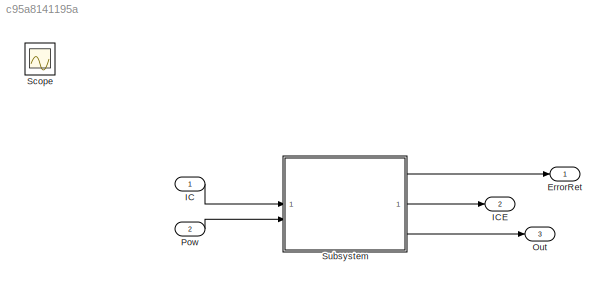
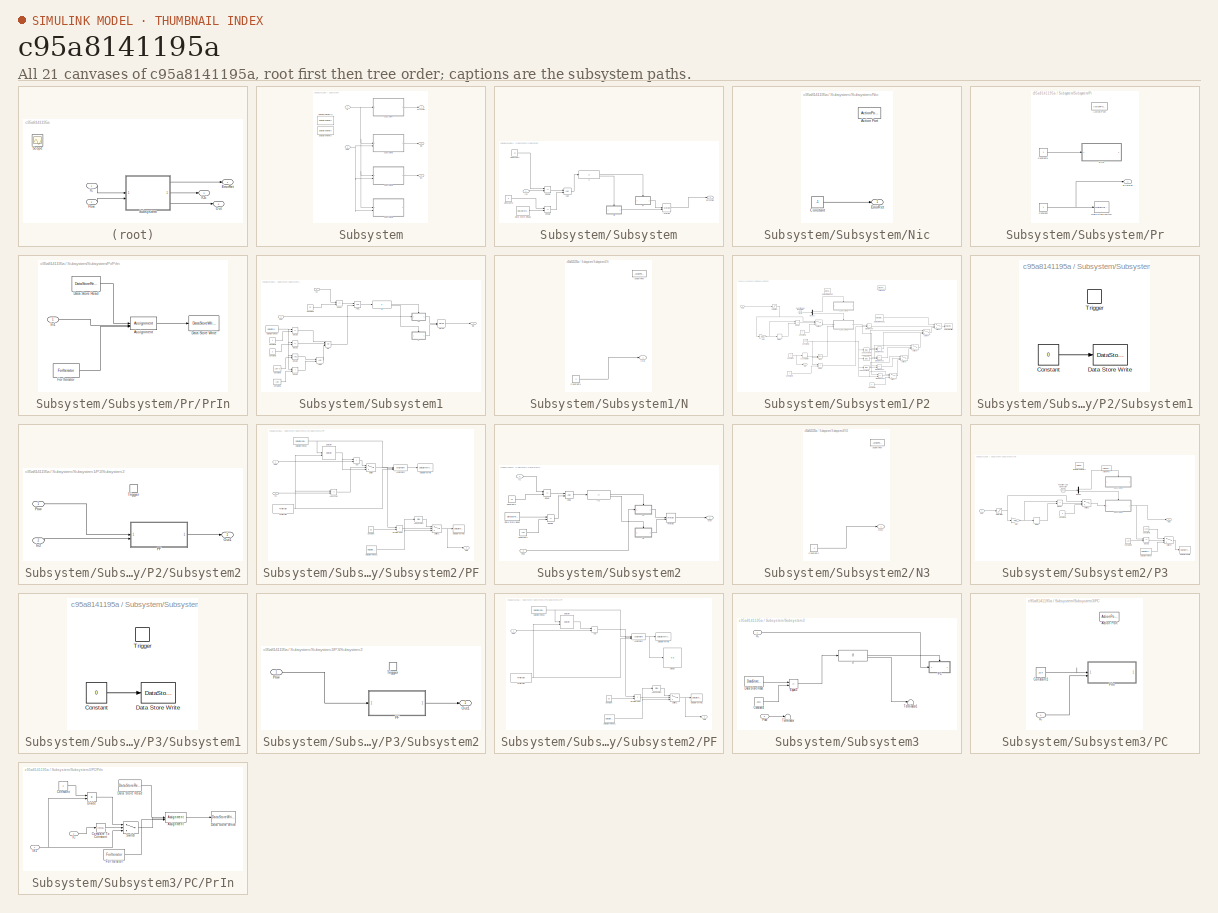
[diagram: thumbnail index - all 21 canvases of the model, root first then tree order]
MODEL slx_c95a8141195a
KIND model
CONFIG AbsTol = auto
CONFIG EnableMultiTasking = off
CONFIG FixedStep = 1
CONFIG MaxStep = auto
CONFIG MinStep = auto
CONFIG RelTol = 1e-3
CONFIG SampleTimeConstraint = Unconstrained
CONFIG SolverName = FixedStepAuto
CONFIG StartTime = 0.0
CONFIG StopTime = 10.0
BLOCK [Outport] ErrorRet
BLOCK [Inport] IC
  OutDataTypeStr = int32
BLOCK [Outport] ICE
  Port = 2
BLOCK [Outport] Out
  Port = 3
BLOCK [Inport] Pow
  OutDataTypeStr = single
  Port = 2
BLOCK [Scope] Scope
  Floating = off
  IOType = viewer
  NumInputPorts = 1
  ScopeSpecificationString = Simulink.scopes.TimeScopeBlockCfg('CurrentConfiguration', extmgr.ConfigurationSet(extmgr.Configuration('Core','General UI',true),extmgr.Configuration('Core','Source UI',true),extmgr.Configuration('Sources','WiredSimulink',true),extmgr.Configuration('Visuals','Time Domain',true),extmgr.Configuration('Tools','Plot Navigation',true),extmgr.Configuration('Tools','Measurements',true,'Version','2022b'))...<+49ch>
BLOCK [SubSystem] Subsystem
BLOCK [DataStoreMemory] Subsystem/Data Store Memory
  DataStoreName = TSS
  Dimensions = Len
  OutDataTypeStr = single
  ShowAdditionalParam = off
  WriteAfterWriteMsg = warning
BLOCK [DataStoreMemory] Subsystem/Data Store Memory1
  DataStoreName = CTRLS
  OutDataTypeStr = int32
  ShowAdditionalParam = off
  WriteAfterWriteMsg = warning
BLOCK [Outport] Subsystem/ErrorRet
BLOCK [Inport] Subsystem/IC
BLOCK [Outport] Subsystem/ICE
  Port = 2
BLOCK [Outport] Subsystem/Out
  Port = 3
BLOCK [Inport] Subsystem/Pow
  OutDataTypeStr = single
  Port = 2
BLOCK [SubSystem] Subsystem/Subsystem
BLOCK [Logic] Subsystem/Subsystem/AND
  AllPortsSameDT = off
  IconShape = distinctive
  OutDataTypeStr = boolean
BLOCK [Constant] Subsystem/Subsystem/Constant2
  OutDataTypeStr = int32
  Value = 11
BLOCK [Constant] Subsystem/Subsystem/Constant3
  OutDataTypeStr = int32
  Value = 0
BLOCK [DataStoreRead] Subsystem/Subsystem/Data Store Read1
  DataStoreName = CTRLS
  IndexOptions = Index vector (dialog)
  Indices = 1
  OutputSizes = 1
BLOCK [RelationalOperator] Subsystem/Subsystem/Equal1
  InputSameDT = off
  Operator = ==
  OutDataTypeStr = boolean
  RndMeth = Simplest
BLOCK [RelationalOperator] Subsystem/Subsystem/Equal2
  InputSameDT = off
  Operator = ==
  OutDataTypeStr = boolean
  RndMeth = Simplest
BLOCK [Outport] Subsystem/Subsystem/ErrorRet
BLOCK [If] Subsystem/Subsystem/If
  IfExpression = u1 ~= 0
BLOCK [Inport] Subsystem/Subsystem/In2
BLOCK [Merge] Subsystem/Subsystem/Merge
BLOCK [SubSystem] Subsystem/Subsystem/Nic
  TreatAsAtomicUnit = on
BLOCK [ActionPort] Subsystem/Subsystem/Nic/Action Port
  ActionPortLabel = else
BLOCK [Constant] Subsystem/Subsystem/Nic/Constant
  OutDataTypeStr = int32
  Value = -1
BLOCK [Outport] Subsystem/Subsystem/Nic/ErrorRet
BLOCK [SubSystem] Subsystem/Subsystem/Pr
  TreatAsAtomicUnit = on
BLOCK [ActionPort] Subsystem/Subsystem/Pr/Action Port
  ActionPortLabel = if(u1 ~= 0)
BLOCK [Constant] Subsystem/Subsystem/Pr/Constant
  OutDataTypeStr = int32
BLOCK [Constant] Subsystem/Subsystem/Pr/Constant1
  OutDataTypeStr = single
BLOCK [DataStoreWrite] Subsystem/Subsystem/Pr/Data Store Write1
  DataStoreName = CTRLS
  IndexOptions = Index vector (dialog)
  Indices = 1
  OutputSizes = 1
BLOCK [Outport] Subsystem/Subsystem/Pr/ErrorRet
BLOCK [SubSystem] Subsystem/Subsystem/Pr/PrIn
  TreatAsAtomicUnit = on
BLOCK [Assignment] Subsystem/Subsystem/Pr/PrIn/Assignment
  DiagnosticForDimensions = Warning
  IndexMode = Zero-based
  IndexOptions = Index vector (port)
  Indices = 1
  OutputSizes = 1
BLOCK [DataStoreRead] Subsystem/Subsystem/Pr/PrIn/Data Store Read
  DataStoreName = TSS
  IndexOptions = Index vector (dialog)
  Indices = 1
  OutputSizes = 1
BLOCK [DataStoreWrite] Subsystem/Subsystem/Pr/PrIn/Data Store Write
  DataStoreName = TSS
  IndexOptions = Index vector (dialog)
  Indices = 1
  OutputSizes = 1
BLOCK [ForIterator] Subsystem/Subsystem/Pr/PrIn/For Iterator
  IndexMode = Zero-based
  IterationLimit = Len
BLOCK [Inport] Subsystem/Subsystem/Pr/PrIn/In1
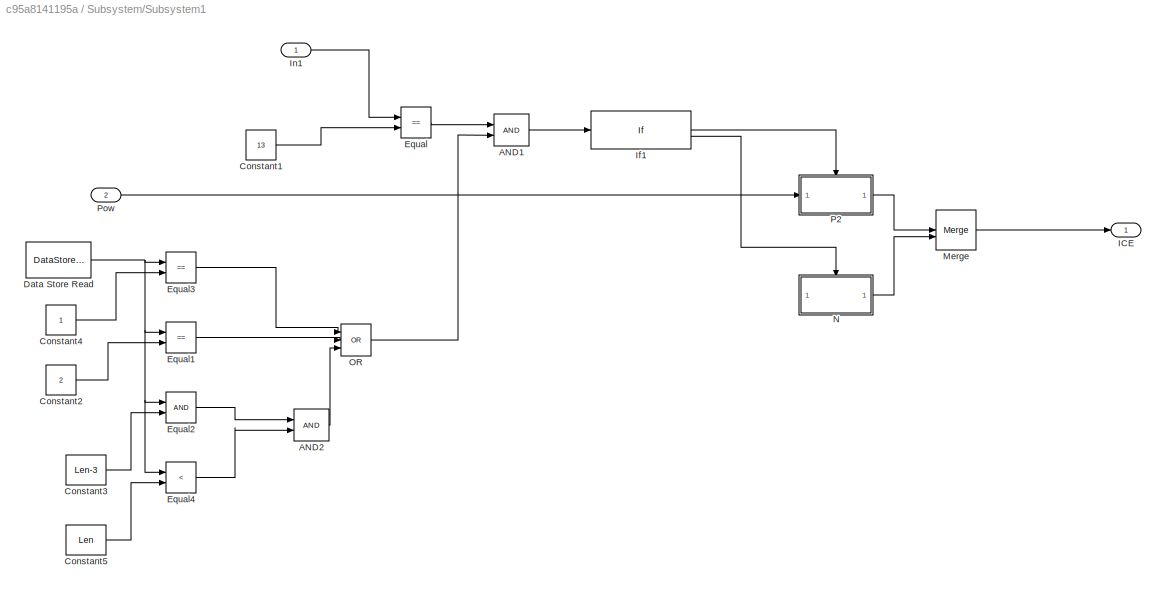
BLOCK [SubSystem] Subsystem/Subsystem1
BLOCK [Logic] Subsystem/Subsystem1/AND1
  AllPortsSameDT = off
  IconShape = distinctive
  OutDataTypeStr = boolean
BLOCK [Logic] Subsystem/Subsystem1/AND2
  AllPortsSameDT = off
  IconShape = distinctive
  OutDataTypeStr = boolean
BLOCK [Constant] Subsystem/Subsystem1/Constant1
  OutDataTypeStr = int32
  Value = 13
BLOCK [Constant] Subsystem/Subsystem1/Constant2
  OutDataTypeStr = int32
  Value = 2
BLOCK [Constant] Subsystem/Subsystem1/Constant3
  OutDataTypeStr = int32
  Value = Len-3
BLOCK [Constant] Subsystem/Subsystem1/Constant4
  OutDataTypeStr = int32
BLOCK [Constant] Subsystem/Subsystem1/Constant5
  OutDataTypeStr = int32
  Value = Len
BLOCK [DataStoreRead] Subsystem/Subsystem1/Data Store Read
  DataStoreName = CTRLS
  IndexOptions = Index vector (dialog)
  Indices = 1
  OutputSizes = 1
BLOCK [RelationalOperator] Subsystem/Subsystem1/Equal
  InputSameDT = off
  Operator = ==
  OutDataTypeStr = boolean
  RndMeth = Simplest
BLOCK [RelationalOperator] Subsystem/Subsystem1/Equal1
  InputSameDT = off
  Operator = ==
  OutDataTypeStr = boolean
  RndMeth = Simplest
BLOCK [RelationalOperator] Subsystem/Subsystem1/Equal2
  InputSameDT = off
  OutDataTypeStr = boolean
  RndMeth = Simplest
BLOCK [RelationalOperator] Subsystem/Subsystem1/Equal3
  InputSameDT = off
  Operator = ==
  OutDataTypeStr = boolean
  RndMeth = Simplest
BLOCK [RelationalOperator] Subsystem/Subsystem1/Equal4
  InputSameDT = off
  Operator = <
  OutDataTypeStr = boolean
  RndMeth = Simplest
BLOCK [Outport] Subsystem/Subsystem1/ICE
BLOCK [If] Subsystem/Subsystem1/If1
  IfExpression = u1 ~= 0
BLOCK [Inport] Subsystem/Subsystem1/In1
BLOCK [Merge] Subsystem/Subsystem1/Merge
BLOCK [SubSystem] Subsystem/Subsystem1/N
  TreatAsAtomicUnit = on
BLOCK [ActionPort] Subsystem/Subsystem1/N/Action Port
  ActionPortLabel = else
BLOCK [Constant] Subsystem/Subsystem1/N/Constant4
  OutDataTypeStr = int32
  Value = 2
BLOCK [Outport] Subsystem/Subsystem1/N/ICE
BLOCK [Logic] Subsystem/Subsystem1/OR
  AllPortsSameDT = off
  IconShape = distinctive
  Inputs = 3
  Operator = OR
  OutDataTypeStr = boolean
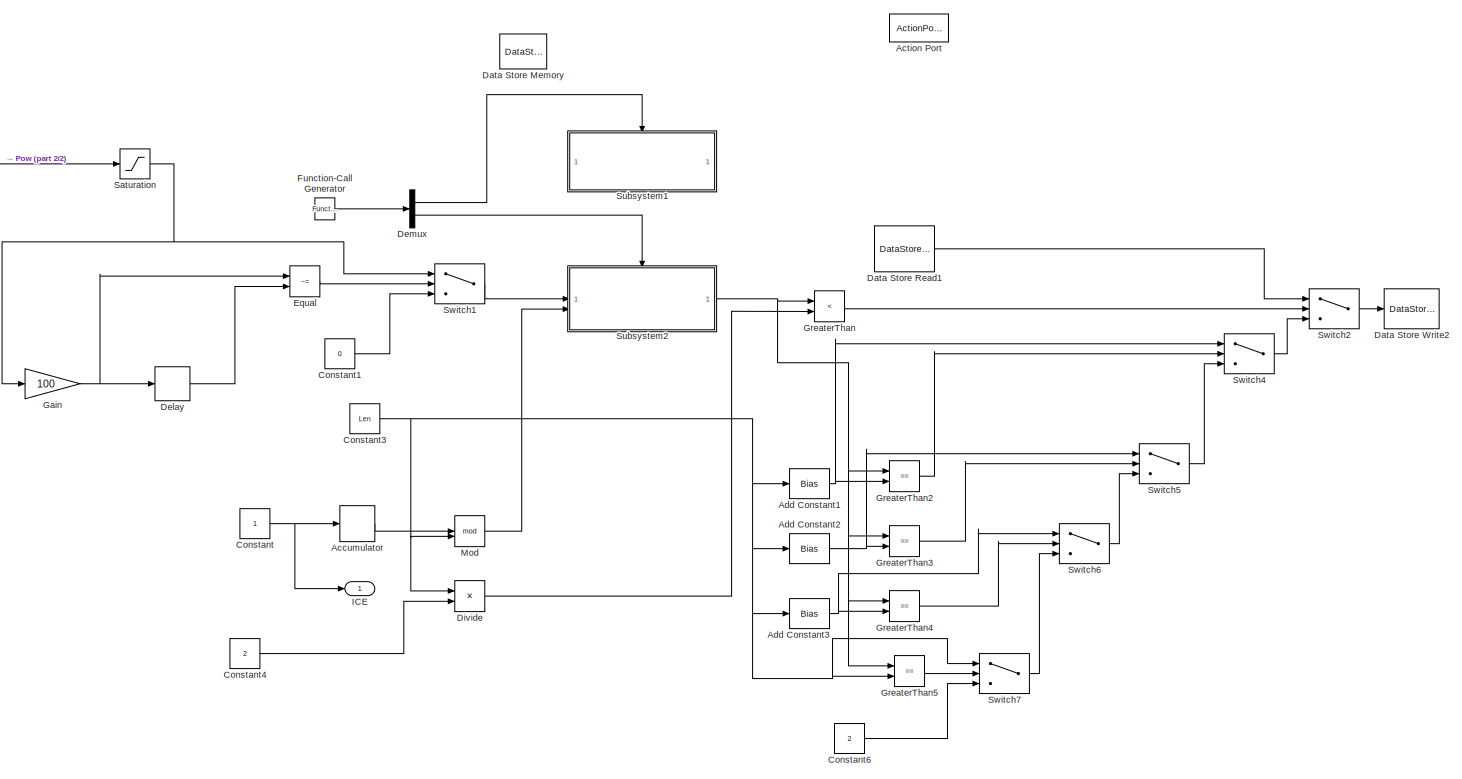
[diagram: Subsystem/Subsystem1/P2 - part 1/2, most of the canvas]
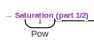
[diagram: Subsystem/Subsystem1/P2 - part 2/2, top left region]
BLOCK [SubSystem] Subsystem/Subsystem1/P2
  TreatAsAtomicUnit = on
BLOCK [DiscreteIntegrator] Subsystem/Subsystem1/P2/Accumulator
  ICPrevOutput = DiscIntNeverNeededParam
  ICPrevScaledInput = DiscIntNeverNeededParam
  InitialConditionSetting = Auto
  IntegratorMethod = Accumulation: Forward Euler
  SampleTime = -1
BLOCK [ActionPort] Subsystem/Subsystem1/P2/Action Port
  ActionPortLabel = if(u1 ~= 0)
BLOCK [Bias] Subsystem/Subsystem1/P2/Add Constant1
  Bias = -3
  SaturateOnIntegerOverflow = off
BLOCK [Bias] Subsystem/Subsystem1/P2/Add Constant2
  Bias = -2
  SaturateOnIntegerOverflow = off
BLOCK [Bias] Subsystem/Subsystem1/P2/Add Constant3
  Bias = -1
  SaturateOnIntegerOverflow = off
BLOCK [Constant] Subsystem/Subsystem1/P2/Constant
  OutDataTypeStr = int32
BLOCK [Constant] Subsystem/Subsystem1/P2/Constant1
  OutDataTypeStr = single
  Value = 0
BLOCK [Constant] Subsystem/Subsystem1/P2/Constant3
  OutDataTypeStr = int32
  Value = Len
BLOCK [Constant] Subsystem/Subsystem1/P2/Constant4
  OutDataTypeStr = int32
  Value = 2
BLOCK [Constant] Subsystem/Subsystem1/P2/Constant6
  OutDataTypeStr = int32
  Value = 2
BLOCK [DataStoreMemory] Subsystem/Subsystem1/P2/Data Store Memory
  DataStoreName = P1C
  OutDataTypeStr = int32
  ShowAdditionalParam = off
  WriteAfterWriteMsg = warning
BLOCK [DataStoreRead] Subsystem/Subsystem1/P2/Data Store Read1
  DataStoreName = CTRLS
  IndexOptions = Index vector (dialog)
  Indices = 1
  OutputSizes = 1
BLOCK [DataStoreWrite] Subsystem/Subsystem1/P2/Data Store Write2
  DataStoreName = CTRLS
  IndexOptions = Index vector (dialog)
  Indices = 1
  OutputSizes = 1
BLOCK [Delay] Subsystem/Subsystem1/P2/Delay
  DelayLength = 1
  InputPortMap = u0
BLOCK [Demux] Subsystem/Subsystem1/P2/Demux
  Outputs = 2
BLOCK [Product] Subsystem/Subsystem1/P2/Divide
  Inputs = */
BLOCK [RelationalOperator] Subsystem/Subsystem1/P2/Equal
  InputSameDT = off
  Operator = ~=
  OutDataTypeStr = boolean
  RndMeth = Simplest
BLOCK [Reference] Subsystem/Subsystem1/P2/Function-Call Generator  REF=simulink/Ports &
Subsystems/Function-Call
Generator
  SourceBlock = simulink/Ports &\nSubsystems/Function-Call\nGenerator
  SourceType = Function-Call Generator
BLOCK [Gain] Subsystem/Subsystem1/P2/Gain
  Gain = 100
  OutDataTypeStr = int32
BLOCK [RelationalOperator] Subsystem/Subsystem1/P2/GreaterThan
  InputSameDT = off
  Operator = <
  OutDataTypeStr = boolean
  RndMeth = Simplest
BLOCK [RelationalOperator] Subsystem/Subsystem1/P2/GreaterThan2
  InputSameDT = off
  Operator = ==
  OutDataTypeStr = boolean
  RndMeth = Simplest
BLOCK [RelationalOperator] Subsystem/Subsystem1/P2/GreaterThan3
  InputSameDT = off
  Operator = ==
  OutDataTypeStr = boolean
  RndMeth = Simplest
BLOCK [RelationalOperator] Subsystem/Subsystem1/P2/GreaterThan4
  InputSameDT = off
  Operator = ==
  OutDataTypeStr = boolean
  RndMeth = Simplest
BLOCK [RelationalOperator] Subsystem/Subsystem1/P2/GreaterThan5
  InputSameDT = off
  Operator = ==
  OutDataTypeStr = boolean
  RndMeth = Simplest
BLOCK [Outport] Subsystem/Subsystem1/P2/ICE
BLOCK [Math] Subsystem/Subsystem1/P2/Mod
  Operator = mod
BLOCK [Inport] Subsystem/Subsystem1/P2/Pow
BLOCK [Saturate] Subsystem/Subsystem1/P2/Saturation
  LowerLimit = 1
  UpperLimit = 4
BLOCK [SubSystem] Subsystem/Subsystem1/P2/Subsystem1
BLOCK [Constant] Subsystem/Subsystem1/P2/Subsystem1/Constant
  OutDataTypeStr = int32
  Value = 0
BLOCK [DataStoreWrite] Subsystem/Subsystem1/P2/Subsystem1/Data Store Write
  DataStoreName = P1C
  IndexOptions = Index vector (dialog)
  Indices = 1
  OutputSizes = 1
BLOCK [TriggerPort] Subsystem/Subsystem1/P2/Subsystem1/Trigger
  PortDimensions = 1
  StatesWhenEnabling = held
  TriggerType = function-call
  VariantControl = (inherit)
BLOCK [SubSystem] Subsystem/Subsystem1/P2/Subsystem2
BLOCK [Inport] Subsystem/Subsystem1/P2/Subsystem2/In2
  Port = 2
BLOCK [Outport] Subsystem/Subsystem1/P2/Subsystem2/Out1
BLOCK [SubSystem] Subsystem/Subsystem1/P2/Subsystem2/PF
  TreatAsAtomicUnit = on
BLOCK [Sum] Subsystem/Subsystem1/P2/Subsystem2/PF/Add
  IconShape = rectangular
BLOCK [Bias] Subsystem/Subsystem1/P2/Subsystem2/PF/Add Constant
  Bias = 1
  SaturateOnIntegerOverflow = off
BLOCK [Assignment] Subsystem/Subsystem1/P2/Subsystem2/PF/Assignment
  DiagnosticForDimensions = Warning
  IndexMode = Zero-based
  IndexOptions = Index vector (port)
  Indices = 1
  OutputSizes = 1
BLOCK [Constant] Subsystem/Subsystem1/P2/Subsystem2/PF/Constant
  OutDataTypeStr = single
  Value = 3.5
BLOCK [DataStoreRead] Subsystem/Subsystem1/P2/Subsystem2/PF/Data Store Read
  DataStoreName = TSS
  IndexOptions = Index vector (dialog)
  Indices = 1
  OutputSizes = 1
BLOCK [DataStoreRead] Subsystem/Subsystem1/P2/Subsystem2/PF/Data Store Read1
  DataStoreName = P1C
  IndexOptions = Index vector (dialog)
  Indices = 1
  OutputSizes = 1
BLOCK [DataStoreWrite] Subsystem/Subsystem1/P2/Subsystem2/PF/Data Store Write
  DataStoreName = TSS
  IndexOptions = Index vector (dialog)
  Indices = 1
  OutputSizes = 1
BLOCK [DataStoreWrite] Subsystem/Subsystem1/P2/Subsystem2/PF/Data Store Write1
  DataStoreName = P1C
  IndexOptions = Index vector (dialog)
  Indices = 1
  OutputSizes = 1
BLOCK [ForIterator] Subsystem/Subsystem1/P2/Subsystem2/PF/For Iterator
  IndexMode = Zero-based
  IterationLimit = Len
BLOCK [RelationalOperator] Subsystem/Subsystem1/P2/Subsystem2/PF/GreaterThan
  InputSameDT = off
  Operator = >
  OutDataTypeStr = boolean
  RndMeth = Simplest
BLOCK [Inport] Subsystem/Subsystem1/P2/Subsystem2/PF/In1
  Port = 2
BLOCK [RelationalOperator] Subsystem/Subsystem1/P2/Subsystem2/PF/Less Than
  InputSameDT = off
  Operator = ==
  OutDataTypeStr = boolean
  RndMeth = Simplest
BLOCK [Outport] Subsystem/Subsystem1/P2/Subsystem2/PF/Out1
BLOCK [Inport] Subsystem/Subsystem1/P2/Subsystem2/PF/Pow
BLOCK [Selector] Subsystem/Subsystem1/P2/Subsystem2/PF/Selector
  IndexMode = Zero-based
  IndexOptions = Index vector (port)
  Indices = [1 3]
  InputPortWidth = Len
  OutputSizes = 1
BLOCK [Switch] Subsystem/Subsystem1/P2/Subsystem2/PF/Switch
  Criteria = u2 > Threshold
  InputSameDT = off
  SaturateOnIntegerOverflow = off
BLOCK [Switch] Subsystem/Subsystem1/P2/Subsystem2/PF/Switch1
  Criteria = u2 > Threshold
  InputSameDT = off
  SaturateOnIntegerOverflow = off
BLOCK [Inport] Subsystem/Subsystem1/P2/Subsystem2/Pow
BLOCK [TriggerPort] Subsystem/Subsystem1/P2/Subsystem2/Trigger
  PortDimensions = 1
  StatesWhenEnabling = held
  TriggerType = function-call
  VariantControl = (inherit)
BLOCK [Switch] Subsystem/Subsystem1/P2/Switch1
  Criteria = u2 > Threshold
  InputSameDT = off
  SaturateOnIntegerOverflow = off
BLOCK [Switch] Subsystem/Subsystem1/P2/Switch2
  Criteria = u2 ~= 0
  InputSameDT = off
  SaturateOnIntegerOverflow = off
BLOCK [Switch] Subsystem/Subsystem1/P2/Switch4
  Criteria = u2 ~= 0
  InputSameDT = off
  SaturateOnIntegerOverflow = off
BLOCK [Switch] Subsystem/Subsystem1/P2/Switch5
  Criteria = u2 ~= 0
  InputSameDT = off
  SaturateOnIntegerOverflow = off
BLOCK [Switch] Subsystem/Subsystem1/P2/Switch6
  Criteria = u2 ~= 0
  InputSameDT = off
  SaturateOnIntegerOverflow = off
BLOCK [Switch] Subsystem/Subsystem1/P2/Switch7
  Criteria = u2 ~= 0
  InputSameDT = off
  SaturateOnIntegerOverflow = off
BLOCK [Inport] Subsystem/Subsystem1/Pow
  Port = 2
BLOCK [SubSystem] Subsystem/Subsystem2
BLOCK [Logic] Subsystem/Subsystem2/AND1
  AllPortsSameDT = off
  IconShape = distinctive
  OutDataTypeStr = boolean
BLOCK [Constant] Subsystem/Subsystem2/Constant1
  OutDataTypeStr = int32
  Value = 19
BLOCK [Constant] Subsystem/Subsystem2/Constant4
  OutDataTypeStr = int32
  Value = Len
BLOCK [DataStoreRead] Subsystem/Subsystem2/Data Store Read
  DataStoreName = CTRLS
  IndexOptions = Index vector (dialog)
  Indices = 1
  OutputSizes = 1
BLOCK [RelationalOperator] Subsystem/Subsystem2/Equal
  InputSameDT = off
  Operator = ==
  OutDataTypeStr = boolean
  RndMeth = Simplest
BLOCK [RelationalOperator] Subsystem/Subsystem2/Equal3
  InputSameDT = off
  Operator = ==
  OutDataTypeStr = boolean
  RndMeth = Simplest
BLOCK [Inport] Subsystem/Subsystem2/IC
BLOCK [If] Subsystem/Subsystem2/If1
  IfExpression = u1 ~= 0
BLOCK [Merge] Subsystem/Subsystem2/Merge
BLOCK [SubSystem] Subsystem/Subsystem2/N3
  TreatAsAtomicUnit = on
BLOCK [ActionPort] Subsystem/Subsystem2/N3/Action Port
  ActionPortLabel = else
BLOCK [Constant] Subsystem/Subsystem2/N3/Constant4
  OutDataTypeStr = int32
  Value = -2
BLOCK [Outport] Subsystem/Subsystem2/N3/Out1
BLOCK [Outport] Subsystem/Subsystem2/Out
BLOCK [SubSystem] Subsystem/Subsystem2/P3
  TreatAsAtomicUnit = on
BLOCK [ActionPort] Subsystem/Subsystem2/P3/Action Port
  ActionPortLabel = if(u1 ~= 0)
BLOCK [Constant] Subsystem/Subsystem2/P3/Constant1
  OutDataTypeStr = single
  Value = 0
BLOCK [Constant] Subsystem/Subsystem2/P3/Constant2
  OutDataTypeStr = int32
  Value = Len
BLOCK [Constant] Subsystem/Subsystem2/P3/Constant3
  OutDataTypeStr = int32
  Value = 1001
BLOCK [DataStoreMemory] Subsystem/Subsystem2/P3/Data Store Memory
  DataStoreName = P2C
  OutDataTypeStr = int32
  ShowAdditionalParam = off
  WriteAfterWriteMsg = warning
BLOCK [DataStoreRead] Subsystem/Subsystem2/P3/Data Store Read
  DataStoreName = CTRLS
  IndexOptions = Index vector (dialog)
  Indices = 1
  OutputSizes = 1
BLOCK [DataStoreWrite] Subsystem/Subsystem2/P3/Data Store Write
  DataStoreName = CTRLS
  IndexOptions = Index vector (dialog)
  Indices = 1
  OutputSizes = 1
BLOCK [Delay] Subsystem/Subsystem2/P3/Delay
  DelayLength = 1
  InputPortMap = u0
BLOCK [Demux] Subsystem/Subsystem2/P3/Demux
  Outputs = 2
BLOCK [RelationalOperator] Subsystem/Subsystem2/P3/Equal
  InputSameDT = off
  Operator = ~=
  OutDataTypeStr = boolean
  RndMeth = Simplest
BLOCK [RelationalOperator] Subsystem/Subsystem2/P3/Equal1
  InputSameDT = off
  Operator = ==
  OutDataTypeStr = boolean
  RndMeth = Simplest
BLOCK [Reference] Subsystem/Subsystem2/P3/Function-Call Generator  REF=simulink/Ports &
Subsystems/Function-Call
Generator
  SourceBlock = simulink/Ports &\nSubsystems/Function-Call\nGenerator
  SourceType = Function-Call Generator
BLOCK [Gain] Subsystem/Subsystem2/P3/Gain
  Gain = 100
  OutDataTypeStr = int32
BLOCK [Outport] Subsystem/Subsystem2/P3/Out1
BLOCK [Inport] Subsystem/Subsystem2/P3/Pow
BLOCK [Saturate] Subsystem/Subsystem2/P3/Saturation
  LowerLimit = 0.5
  UpperLimit = 1.2
BLOCK [SubSystem] Subsystem/Subsystem2/P3/Subsystem1
BLOCK [Constant] Subsystem/Subsystem2/P3/Subsystem1/Constant
  OutDataTypeStr = int32
  Value = 0
BLOCK [DataStoreWrite] Subsystem/Subsystem2/P3/Subsystem1/Data Store Write
  DataStoreName = P2C
  IndexOptions = Index vector (dialog)
  Indices = 1
  OutputSizes = 1
BLOCK [TriggerPort] Subsystem/Subsystem2/P3/Subsystem1/Trigger
  PortDimensions = 1
  StatesWhenEnabling = held
  TriggerType = function-call
  VariantControl = (inherit)
BLOCK [SubSystem] Subsystem/Subsystem2/P3/Subsystem2
BLOCK [Outport] Subsystem/Subsystem2/P3/Subsystem2/Out1
BLOCK [SubSystem] Subsystem/Subsystem2/P3/Subsystem2/PF
  TreatAsAtomicUnit = on
BLOCK [Sum] Subsystem/Subsystem2/P3/Subsystem2/PF/Add
  IconShape = rectangular
BLOCK [Bias] Subsystem/Subsystem2/P3/Subsystem2/PF/Add Constant
  Bias = 1
  SaturateOnIntegerOverflow = off
BLOCK [Assignment] Subsystem/Subsystem2/P3/Subsystem2/PF/Assignment
  DiagnosticForDimensions = Warning
  IndexMode = Zero-based
  IndexOptions = Index vector (port)
  Indices = 1
  OutputSizes = 1
BLOCK [Constant] Subsystem/Subsystem2/P3/Subsystem2/PF/Constant
  OutDataTypeStr = single
  Value = 9.9
BLOCK [DataStoreRead] Subsystem/Subsystem2/P3/Subsystem2/PF/Data Store Read
  DataStoreName = TSS
  IndexOptions = Index vector (dialog)
  Indices = 1
  OutputSizes = 1
BLOCK [DataStoreRead] Subsystem/Subsystem2/P3/Subsystem2/PF/Data Store Read1
  DataStoreName = P2C
  IndexOptions = Index vector (dialog)
  Indices = 1
  OutputSizes = 1
BLOCK [DataStoreWrite] Subsystem/Subsystem2/P3/Subsystem2/PF/Data Store Write
  DataStoreName = TSS
  IndexOptions = Index vector (dialog)
  Indices = 1
  OutputSizes = 1
BLOCK [DataStoreWrite] Subsystem/Subsystem2/P3/Subsystem2/PF/Data Store Write1
  DataStoreName = P2C
  IndexOptions = Index vector (dialog)
  Indices = 1
  OutputSizes = 1
BLOCK [Display] Subsystem/Subsystem2/P3/Subsystem2/PF/Display
  Decimation = 1
BLOCK [ForIterator] Subsystem/Subsystem2/P3/Subsystem2/PF/For Iterator
  IndexMode = Zero-based
  IterationLimit = Len
BLOCK [RelationalOperator] Subsystem/Subsystem2/P3/Subsystem2/PF/GreaterThan
  InputSameDT = off
  Operator = >
  OutDataTypeStr = boolean
  RndMeth = Simplest
BLOCK [Outport] Subsystem/Subsystem2/P3/Subsystem2/PF/Out1
BLOCK [Inport] Subsystem/Subsystem2/P3/Subsystem2/PF/Pow
BLOCK [Selector] Subsystem/Subsystem2/P3/Subsystem2/PF/Selector
  IndexMode = Zero-based
  IndexOptions = Index vector (port)
  Indices = [1 3]
  InputPortWidth = Len
  OutputSizes = 1
BLOCK [Switch] Subsystem/Subsystem2/P3/Subsystem2/PF/Switch1
  Criteria = u2 > Threshold
  InputSameDT = off
  SaturateOnIntegerOverflow = off
BLOCK [Inport] Subsystem/Subsystem2/P3/Subsystem2/Pow
BLOCK [TriggerPort] Subsystem/Subsystem2/P3/Subsystem2/Trigger
  PortDimensions = 1
  StatesWhenEnabling = held
  TriggerType = function-call
  VariantControl = (inherit)
BLOCK [Switch] Subsystem/Subsystem2/P3/Switch1
  Criteria = u2 ~= 0
  InputSameDT = off
  SaturateOnIntegerOverflow = off
BLOCK [Switch] Subsystem/Subsystem2/P3/Switch2
  Criteria = u2 ~= 0
  InputSameDT = off
  SaturateOnIntegerOverflow = off
BLOCK [Inport] Subsystem/Subsystem2/Pow
  Port = 2
BLOCK [SubSystem] Subsystem/Subsystem3
BLOCK [Constant] Subsystem/Subsystem3/Constant4
  OutDataTypeStr = int32
  Value = 1001
BLOCK [DataStoreRead] Subsystem/Subsystem3/Data Store Read
  DataStoreName = CTRLS
  IndexOptions = Index vector (dialog)
  Indices = 1
  OutputSizes = 1
BLOCK [RelationalOperator] Subsystem/Subsystem3/Equal3
  InputSameDT = off
  Operator = ==
  OutDataTypeStr = boolean
  RndMeth = Simplest
BLOCK [Inport] Subsystem/Subsystem3/IC
BLOCK [If] Subsystem/Subsystem3/If
  IfExpression = u1 ~= 0
BLOCK [SubSystem] Subsystem/Subsystem3/PC
  TreatAsAtomicUnit = on
BLOCK [ActionPort] Subsystem/Subsystem3/PC/Action Port
  ActionPortLabel = if(u1 ~= 0)
BLOCK [Constant] Subsystem/Subsystem3/PC/Constant1
  OutDataTypeStr = single
  Value = 10.0
BLOCK [Inport] Subsystem/Subsystem3/PC/IC
BLOCK [SubSystem] Subsystem/Subsystem3/PC/PrIn
  TreatAsAtomicUnit = on
BLOCK [Assignment] Subsystem/Subsystem3/PC/PrIn/Assignment
  DiagnosticForDimensions = Warning
  IndexMode = Zero-based
  IndexOptions = Index vector (port)
  Indices = 1
  OutputSizes = 1
BLOCK [Reference] Subsystem/Subsystem3/PC/PrIn/Compare To Constant  REF=simulink/Logic and Bit
Operations/Compare
To Constant
  SourceBlock = simulink/Logic and Bit\nOperations/Compare\nTo Constant
  SourceType = Compare To Constant
BLOCK [Constant] Subsystem/Subsystem3/PC/PrIn/Constant
  OutDataTypeStr = single
  Value = 2
BLOCK [DataStoreRead] Subsystem/Subsystem3/PC/PrIn/Data Store Read
  DataStoreName = TSS
  IndexOptions = Index vector (dialog)
  Indices = 1
  OutputSizes = 1
BLOCK [DataStoreWrite] Subsystem/Subsystem3/PC/PrIn/Data Store Write
  DataStoreName = TSS
  IndexOptions = Index vector (dialog)
  Indices = 1
  OutputSizes = 1
BLOCK [Product] Subsystem/Subsystem3/PC/PrIn/Divide
  Inputs = **
BLOCK [ForIterator] Subsystem/Subsystem3/PC/PrIn/For Iterator
  IndexMode = Zero-based
  IterationLimit = Len
BLOCK [Inport] Subsystem/Subsystem3/PC/PrIn/IC
  Port = 2
BLOCK [Inport] Subsystem/Subsystem3/PC/PrIn/In1
BLOCK [Switch] Subsystem/Subsystem3/PC/PrIn/Switch
  Criteria = u2 ~= 0
  InputSameDT = off
  SaturateOnIntegerOverflow = off
BLOCK [Inport] Subsystem/Subsystem3/Pow
  Port = 2
BLOCK [Terminator] Subsystem/Subsystem3/Terminator
BLOCK [Terminator] Subsystem/Subsystem3/Terminator1
LINE IC:1 -> Subsystem:1
LINE Pow:1 -> Subsystem:2
NET Subsystem/IC:1 -> Subsystem/Subsystem1:1, Subsystem/Subsystem2:1, Subsystem/Subsystem3:1, Subsystem/Subsystem:1
NET Subsystem/Pow:1 -> Subsystem/Subsystem1:2, Subsystem/Subsystem2:2, Subsystem/Subsystem3:2
LINE Subsystem/Subsystem/AND:1 -> Subsystem/Subsystem/If:1
LINE Subsystem/Subsystem/Constant2:1 -> Subsystem/Subsystem/Equal1:1
LINE Subsystem/Subsystem/Constant3:1 -> Subsystem/Subsystem/Equal2:1
LINE Subsystem/Subsystem/Data Store Read1:1 -> Subsystem/Subsystem/Equal2:2
LINE Subsystem/Subsystem/Equal1:1 -> Subsystem/Subsystem/AND:1
LINE Subsystem/Subsystem/Equal2:1 -> Subsystem/Subsystem/AND:2
LINE Subsystem/Subsystem/If:1 -> Subsystem/Subsystem/Pr:ifaction
LINE Subsystem/Subsystem/If:2 -> Subsystem/Subsystem/Nic:ifaction
LINE Subsystem/Subsystem/In2:1 -> Subsystem/Subsystem/Equal1:2
LINE Subsystem/Subsystem/Merge:1 -> Subsystem/Subsystem/ErrorRet:1
LINE Subsystem/Subsystem/Nic/Constant:1 -> Subsystem/Subsystem/Nic/ErrorRet:1
LINE Subsystem/Subsystem/Nic:1 -> Subsystem/Subsystem/Merge:2
LINE Subsystem/Subsystem/Pr/Constant1:1 -> Subsystem/Subsystem/Pr/PrIn:1
NET Subsystem/Subsystem/Pr/Constant:1 -> Subsystem/Subsystem/Pr/Data Store Write1:1, Subsystem/Subsystem/Pr/ErrorRet:1
LINE Subsystem/Subsystem/Pr/PrIn/Assignment:1 -> Subsystem/Subsystem/Pr/PrIn/Data Store Write:1
LINE Subsystem/Subsystem/Pr/PrIn/Data Store Read:1 -> Subsystem/Subsystem/Pr/PrIn/Assignment:1
LINE Subsystem/Subsystem/Pr/PrIn/For Iterator:1 -> Subsystem/Subsystem/Pr/PrIn/Assignment:3
LINE Subsystem/Subsystem/Pr/PrIn/In1:1 -> Subsystem/Subsystem/Pr/PrIn/Assignment:2
LINE Subsystem/Subsystem/Pr:1 -> Subsystem/Subsystem/Merge:1
LINE Subsystem/Subsystem1/AND1:1 -> Subsystem/Subsystem1/If1:1
LINE Subsystem/Subsystem1/AND2:1 -> Subsystem/Subsystem1/OR:3
LINE Subsystem/Subsystem1/Constant1:1 -> Subsystem/Subsystem1/Equal:2
LINE Subsystem/Subsystem1/Constant2:1 -> Subsystem/Subsystem1/Equal1:2
LINE Subsystem/Subsystem1/Constant3:1 -> Subsystem/Subsystem1/Equal2:2
LINE Subsystem/Subsystem1/Constant4:1 -> Subsystem/Subsystem1/Equal3:2
LINE Subsystem/Subsystem1/Constant5:1 -> Subsystem/Subsystem1/Equal4:2
NET Subsystem/Subsystem1/Data Store Read:1 -> Subsystem/Subsystem1/Equal1:1, Subsystem/Subsystem1/Equal2:1, Subsystem/Subsystem1/Equal3:1, Subsystem/Subsystem1/Equal4:1
LINE Subsystem/Subsystem1/Equal1:1 -> Subsystem/Subsystem1/OR:2
LINE Subsystem/Subsystem1/Equal2:1 -> Subsystem/Subsystem1/AND2:1
LINE Subsystem/Subsystem1/Equal3:1 -> Subsystem/Subsystem1/OR:1
LINE Subsystem/Subsystem1/Equal4:1 -> Subsystem/Subsystem1/AND2:2
LINE Subsystem/Subsystem1/Equal:1 -> Subsystem/Subsystem1/AND1:1
LINE Subsystem/Subsystem1/If1:1 -> Subsystem/Subsystem1/P2:ifaction
LINE Subsystem/Subsystem1/If1:2 -> Subsystem/Subsystem1/N:ifaction
LINE Subsystem/Subsystem1/In1:1 -> Subsystem/Subsystem1/Equal:1
LINE Subsystem/Subsystem1/Merge:1 -> Subsystem/Subsystem1/ICE:1
LINE Subsystem/Subsystem1/N/Constant4:1 -> Subsystem/Subsystem1/N/ICE:1
LINE Subsystem/Subsystem1/N:1 -> Subsystem/Subsystem1/Merge:2
LINE Subsystem/Subsystem1/OR:1 -> Subsystem/Subsystem1/AND1:2
LINE Subsystem/Subsystem1/P2/Accumulator:1 -> Subsystem/Subsystem1/P2/Mod:1
NET Subsystem/Subsystem1/P2/Add Constant1:1 -> Subsystem/Subsystem1/P2/GreaterThan2:2, Subsystem/Subsystem1/P2/Switch4:1
NET Subsystem/Subsystem1/P2/Add Constant2:1 -> Subsystem/Subsystem1/P2/GreaterThan3:2, Subsystem/Subsystem1/P2/Switch5:1
NET Subsystem/Subsystem1/P2/Add Constant3:1 -> Subsystem/Subsystem1/P2/GreaterThan4:2, Subsystem/Subsystem1/P2/Switch6:1
LINE Subsystem/Subsystem1/P2/Constant1:1 -> Subsystem/Subsystem1/P2/Switch1:3
NET Subsystem/Subsystem1/P2/Constant3:1 -> Subsystem/Subsystem1/P2/Add Constant1:1, Subsystem/Subsystem1/P2/Add Constant2:1, Subsystem/Subsystem1/P2/Add Constant3:1, Subsystem/Subsystem1/P2/Divide:1, Subsystem/Subsystem1/P2/GreaterThan5:2, Subsystem/Subsystem1/P2/Mod:2, Subsystem/Subsystem1/P2/Switch7:1
LINE Subsystem/Subsystem1/P2/Constant4:1 -> Subsystem/Subsystem1/P2/Divide:2
LINE Subsystem/Subsystem1/P2/Constant6:1 -> Subsystem/Subsystem1/P2/Switch7:3
NET Subsystem/Subsystem1/P2/Constant:1 -> Subsystem/Subsystem1/P2/Accumulator:1, Subsystem/Subsystem1/P2/ICE:1
LINE Subsystem/Subsystem1/P2/Data Store Read1:1 -> Subsystem/Subsystem1/P2/Switch2:1
LINE Subsystem/Subsystem1/P2/Delay:1 -> Subsystem/Subsystem1/P2/Equal:2
LINE Subsystem/Subsystem1/P2/Demux:1 -> Subsystem/Subsystem1/P2/Subsystem1:trigger
LINE Subsystem/Subsystem1/P2/Demux:2 -> Subsystem/Subsystem1/P2/Subsystem2:trigger
LINE Subsystem/Subsystem1/P2/Divide:1 -> Subsystem/Subsystem1/P2/GreaterThan:2
LINE Subsystem/Subsystem1/P2/Equal:1 -> Subsystem/Subsystem1/P2/Switch1:2
LINE Subsystem/Subsystem1/P2/Function-Call Generator:1 -> Subsystem/Subsystem1/P2/Demux:1
NET Subsystem/Subsystem1/P2/Gain:1 -> Subsystem/Subsystem1/P2/Delay:1, Subsystem/Subsystem1/P2/Equal:1
LINE Subsystem/Subsystem1/P2/GreaterThan2:1 -> Subsystem/Subsystem1/P2/Switch4:2
LINE Subsystem/Subsystem1/P2/GreaterThan3:1 -> Subsystem/Subsystem1/P2/Switch5:2
LINE Subsystem/Subsystem1/P2/GreaterThan4:1 -> Subsystem/Subsystem1/P2/Switch6:2
LINE Subsystem/Subsystem1/P2/GreaterThan5:1 -> Subsystem/Subsystem1/P2/Switch7:2
LINE Subsystem/Subsystem1/P2/GreaterThan:1 -> Subsystem/Subsystem1/P2/Switch2:2
LINE Subsystem/Subsystem1/P2/Mod:1 -> Subsystem/Subsystem1/P2/Subsystem2:2
LINE Subsystem/Subsystem1/P2/Pow:1 -> Subsystem/Subsystem1/P2/Saturation:1
NET Subsystem/Subsystem1/P2/Saturation:1 -> Subsystem/Subsystem1/P2/Gain:1, Subsystem/Subsystem1/P2/Switch1:1
LINE Subsystem/Subsystem1/P2/Subsystem1/Constant:1 -> Subsystem/Subsystem1/P2/Subsystem1/Data Store Write:1
LINE Subsystem/Subsystem1/P2/Subsystem2/In2:1 -> Subsystem/Subsystem1/P2/Subsystem2/PF:2
LINE Subsystem/Subsystem1/P2/Subsystem2/PF/Add Constant:1 -> Subsystem/Subsystem1/P2/Subsystem2/PF/Switch1:1
LINE Subsystem/Subsystem1/P2/Subsystem2/PF/Add:1 -> Subsystem/Subsystem1/P2/Subsystem2/PF/Switch:1
LINE Subsystem/Subsystem1/P2/Subsystem2/PF/Assignment:1 -> Subsystem/Subsystem1/P2/Subsystem2/PF/Data Store Write:1
LINE Subsystem/Subsystem1/P2/Subsystem2/PF/Constant:1 -> Subsystem/Subsystem1/P2/Subsystem2/PF/GreaterThan:2
NET Subsystem/Subsystem1/P2/Subsystem2/PF/Data Store Read1:1 -> Subsystem/Subsystem1/P2/Subsystem2/PF/Add Constant:1, Subsystem/Subsystem1/P2/Subsystem2/PF/Switch1:3
NET Subsystem/Subsystem1/P2/Subsystem2/PF/Data Store Read:1 -> Subsystem/Subsystem1/P2/Subsystem2/PF/Assignment:1, Subsystem/Subsystem1/P2/Subsystem2/PF/Selector:1
NET Subsystem/Subsystem1/P2/Subsystem2/PF/For Iterator:1 -> Subsystem/Subsystem1/P2/Subsystem2/PF/Assignment:3, Subsystem/Subsystem1/P2/Subsystem2/PF/Less Than:1, Subsystem/Subsystem1/P2/Subsystem2/PF/Selector:2
LINE Subsystem/Subsystem1/P2/Subsystem2/PF/GreaterThan:1 -> Subsystem/Subsystem1/P2/Subsystem2/PF/Switch1:2
LINE Subsystem/Subsystem1/P2/Subsystem2/PF/In1:1 -> Subsystem/Subsystem1/P2/Subsystem2/PF/Less Than:2
LINE Subsystem/Subsystem1/P2/Subsystem2/PF/Less Than:1 -> Subsystem/Subsystem1/P2/Subsystem2/PF/Switch:2
LINE Subsystem/Subsystem1/P2/Subsystem2/PF/Pow:1 -> Subsystem/Subsystem1/P2/Subsystem2/PF/Add:2
NET Subsystem/Subsystem1/P2/Subsystem2/PF/Selector:1 -> Subsystem/Subsystem1/P2/Subsystem2/PF/Add:1, Subsystem/Subsystem1/P2/Subsystem2/PF/Switch:3
NET Subsystem/Subsystem1/P2/Subsystem2/PF/Switch1:1 -> Subsystem/Subsystem1/P2/Subsystem2/PF/Data Store Write1:1, Subsystem/Subsystem1/P2/Subsystem2/PF/Out1:1
NET Subsystem/Subsystem1/P2/Subsystem2/PF/Switch:1 -> Subsystem/Subsystem1/P2/Subsystem2/PF/Assignment:2, Subsystem/Subsystem1/P2/Subsystem2/PF/GreaterThan:1
LINE Subsystem/Subsystem1/P2/Subsystem2/PF:1 -> Subsystem/Subsystem1/P2/Subsystem2/Out1:1
LINE Subsystem/Subsystem1/P2/Subsystem2/Pow:1 -> Subsystem/Subsystem1/P2/Subsystem2/PF:1
NET Subsystem/Subsystem1/P2/Subsystem2:1 -> Subsystem/Subsystem1/P2/GreaterThan2:1, Subsystem/Subsystem1/P2/GreaterThan3:1, Subsystem/Subsystem1/P2/GreaterThan4:1, Subsystem/Subsystem1/P2/GreaterThan5:1, Subsystem/Subsystem1/P2/GreaterThan:1
LINE Subsystem/Subsystem1/P2/Switch1:1 -> Subsystem/Subsystem1/P2/Subsystem2:1
LINE Subsystem/Subsystem1/P2/Switch2:1 -> Subsystem/Subsystem1/P2/Data Store Write2:1
LINE Subsystem/Subsystem1/P2/Switch4:1 -> Subsystem/Subsystem1/P2/Switch2:3
LINE Subsystem/Subsystem1/P2/Switch5:1 -> Subsystem/Subsystem1/P2/Switch4:3
LINE Subsystem/Subsystem1/P2/Switch6:1 -> Subsystem/Subsystem1/P2/Switch5:3
LINE Subsystem/Subsystem1/P2/Switch7:1 -> Subsystem/Subsystem1/P2/Switch6:3
LINE Subsystem/Subsystem1/P2:1 -> Subsystem/Subsystem1/Merge:1
LINE Subsystem/Subsystem1/Pow:1 -> Subsystem/Subsystem1/P2:1
LINE Subsystem/Subsystem1:1 -> Subsystem/ICE:1
LINE Subsystem/Subsystem2/AND1:1 -> Subsystem/Subsystem2/If1:1
LINE Subsystem/Subsystem2/Constant1:1 -> Subsystem/Subsystem2/Equal:2
LINE Subsystem/Subsystem2/Constant4:1 -> Subsystem/Subsystem2/Equal3:2
LINE Subsystem/Subsystem2/Data Store Read:1 -> Subsystem/Subsystem2/Equal3:1
LINE Subsystem/Subsystem2/Equal3:1 -> Subsystem/Subsystem2/AND1:2
LINE Subsystem/Subsystem2/Equal:1 -> Subsystem/Subsystem2/AND1:1
LINE Subsystem/Subsystem2/IC:1 -> Subsystem/Subsystem2/Equal:1
LINE Subsystem/Subsystem2/If1:1 -> Subsystem/Subsystem2/P3:ifaction
LINE Subsystem/Subsystem2/If1:2 -> Subsystem/Subsystem2/N3:ifaction
LINE Subsystem/Subsystem2/Merge:1 -> Subsystem/Subsystem2/Out:1
LINE Subsystem/Subsystem2/N3/Constant4:1 -> Subsystem/Subsystem2/N3/Out1:1
LINE Subsystem/Subsystem2/N3:1 -> Subsystem/Subsystem2/Merge:2
LINE Subsystem/Subsystem2/P3/Constant1:1 -> Subsystem/Subsystem2/P3/Switch1:3
LINE Subsystem/Subsystem2/P3/Constant2:1 -> Subsystem/Subsystem2/P3/Equal1:2
LINE Subsystem/Subsystem2/P3/Constant3:1 -> Subsystem/Subsystem2/P3/Switch2:1
LINE Subsystem/Subsystem2/P3/Data Store Read:1 -> Subsystem/Subsystem2/P3/Switch2:3
LINE Subsystem/Subsystem2/P3/Delay:1 -> Subsystem/Subsystem2/P3/Equal:2
LINE Subsystem/Subsystem2/P3/Demux:1 -> Subsystem/Subsystem2/P3/Subsystem1:trigger
LINE Subsystem/Subsystem2/P3/Demux:2 -> Subsystem/Subsystem2/P3/Subsystem2:trigger
LINE Subsystem/Subsystem2/P3/Equal1:1 -> Subsystem/Subsystem2/P3/Switch2:2
LINE Subsystem/Subsystem2/P3/Equal:1 -> Subsystem/Subsystem2/P3/Switch1:2
LINE Subsystem/Subsystem2/P3/Function-Call Generator:1 -> Subsystem/Subsystem2/P3/Demux:1
NET Subsystem/Subsystem2/P3/Gain:1 -> Subsystem/Subsystem2/P3/Delay:1, Subsystem/Subsystem2/P3/Equal:1
LINE Subsystem/Subsystem2/P3/Pow:1 -> Subsystem/Subsystem2/P3/Saturation:1
NET Subsystem/Subsystem2/P3/Saturation:1 -> Subsystem/Subsystem2/P3/Gain:1, Subsystem/Subsystem2/P3/Switch1:1
LINE Subsystem/Subsystem2/P3/Subsystem1/Constant:1 -> Subsystem/Subsystem2/P3/Subsystem1/Data Store Write:1
LINE Subsystem/Subsystem2/P3/Subsystem2/PF/Add Constant:1 -> Subsystem/Subsystem2/P3/Subsystem2/PF/Switch1:1
NET Subsystem/Subsystem2/P3/Subsystem2/PF/Add:1 -> Subsystem/Subsystem2/P3/Subsystem2/PF/Assignment:2, Subsystem/Subsystem2/P3/Subsystem2/PF/GreaterThan:1
NET Subsystem/Subsystem2/P3/Subsystem2/PF/Assignment:1 -> Subsystem/Subsystem2/P3/Subsystem2/PF/Data Store Write:1, Subsystem/Subsystem2/P3/Subsystem2/PF/Display:1
LINE Subsystem/Subsystem2/P3/Subsystem2/PF/Constant:1 -> Subsystem/Subsystem2/P3/Subsystem2/PF/GreaterThan:2
NET Subsystem/Subsystem2/P3/Subsystem2/PF/Data Store Read1:1 -> Subsystem/Subsystem2/P3/Subsystem2/PF/Add Constant:1, Subsystem/Subsystem2/P3/Subsystem2/PF/Switch1:3
NET Subsystem/Subsystem2/P3/Subsystem2/PF/Data Store Read:1 -> Subsystem/Subsystem2/P3/Subsystem2/PF/Assignment:1, Subsystem/Subsystem2/P3/Subsystem2/PF/Selector:1
NET Subsystem/Subsystem2/P3/Subsystem2/PF/For Iterator:1 -> Subsystem/Subsystem2/P3/Subsystem2/PF/Assignment:3, Subsystem/Subsystem2/P3/Subsystem2/PF/Selector:2
LINE Subsystem/Subsystem2/P3/Subsystem2/PF/GreaterThan:1 -> Subsystem/Subsystem2/P3/Subsystem2/PF/Switch1:2
LINE Subsystem/Subsystem2/P3/Subsystem2/PF/Pow:1 -> Subsystem/Subsystem2/P3/Subsystem2/PF/Add:2
LINE Subsystem/Subsystem2/P3/Subsystem2/PF/Selector:1 -> Subsystem/Subsystem2/P3/Subsystem2/PF/Add:1
NET Subsystem/Subsystem2/P3/Subsystem2/PF/Switch1:1 -> Subsystem/Subsystem2/P3/Subsystem2/PF/Data Store Write1:1, Subsystem/Subsystem2/P3/Subsystem2/PF/Out1:1
LINE Subsystem/Subsystem2/P3/Subsystem2/PF:1 -> Subsystem/Subsystem2/P3/Subsystem2/Out1:1
LINE Subsystem/Subsystem2/P3/Subsystem2/Pow:1 -> Subsystem/Subsystem2/P3/Subsystem2/PF:1
NET Subsystem/Subsystem2/P3/Subsystem2:1 -> Subsystem/Subsystem2/P3/Equal1:1, Subsystem/Subsystem2/P3/Out1:1
LINE Subsystem/Subsystem2/P3/Switch1:1 -> Subsystem/Subsystem2/P3/Subsystem2:1
LINE Subsystem/Subsystem2/P3/Switch2:1 -> Subsystem/Subsystem2/P3/Data Store Write:1
LINE Subsystem/Subsystem2/P3:1 -> Subsystem/Subsystem2/Merge:1
LINE Subsystem/Subsystem2/Pow:1 -> Subsystem/Subsystem2/P3:1
LINE Subsystem/Subsystem2:1 -> Subsystem/Out:1
LINE Subsystem/Subsystem3/Constant4:1 -> Subsystem/Subsystem3/Equal3:2
LINE Subsystem/Subsystem3/Data Store Read:1 -> Subsystem/Subsystem3/Equal3:1
LINE Subsystem/Subsystem3/Equal3:1 -> Subsystem/Subsystem3/If:1
LINE Subsystem/Subsystem3/IC:1 -> Subsystem/Subsystem3/PC:1
LINE Subsystem/Subsystem3/If:1 -> Subsystem/Subsystem3/PC:ifaction
LINE Subsystem/Subsystem3/If:2 -> Subsystem/Subsystem3/Terminator1:1
LINE Subsystem/Subsystem3/PC/Constant1:1 -> Subsystem/Subsystem3/PC/PrIn:1
LINE Subsystem/Subsystem3/PC/IC:1 -> Subsystem/Subsystem3/PC/PrIn:2
LINE Subsystem/Subsystem3/PC/PrIn/Assignment:1 -> Subsystem/Subsystem3/PC/PrIn/Data Store Write:1
LINE Subsystem/Subsystem3/PC/PrIn/Compare To Constant:1 -> Subsystem/Subsystem3/PC/PrIn/Switch:2
LINE Subsystem/Subsystem3/PC/PrIn/Constant:1 -> Subsystem/Subsystem3/PC/PrIn/Divide:1
LINE Subsystem/Subsystem3/PC/PrIn/Data Store Read:1 -> Subsystem/Subsystem3/PC/PrIn/Assignment:1
LINE Subsystem/Subsystem3/PC/PrIn/Divide:1 -> Subsystem/Subsystem3/PC/PrIn/Switch:1
LINE Subsystem/Subsystem3/PC/PrIn/For Iterator:1 -> Subsystem/Subsystem3/PC/PrIn/Assignment:3
LINE Subsystem/Subsystem3/PC/PrIn/IC:1 -> Subsystem/Subsystem3/PC/PrIn/Compare To Constant:1
NET Subsystem/Subsystem3/PC/PrIn/In1:1 -> Subsystem/Subsystem3/PC/PrIn/Divide:2, Subsystem/Subsystem3/PC/PrIn/Switch:3
LINE Subsystem/Subsystem3/PC/PrIn/Switch:1 -> Subsystem/Subsystem3/PC/PrIn/Assignment:2
LINE Subsystem/Subsystem3/Pow:1 -> Subsystem/Subsystem3/Terminator:1
LINE Subsystem/Subsystem:1 -> Subsystem/ErrorRet:1
LINE Subsystem:1 -> ErrorRet:1
LINE Subsystem:2 -> ICE:1
LINE Subsystem:3 -> Out:1
note: NET lines group one-source signal fan-out (src -> all destinations, sorted); 1:1 wires keep LINE
